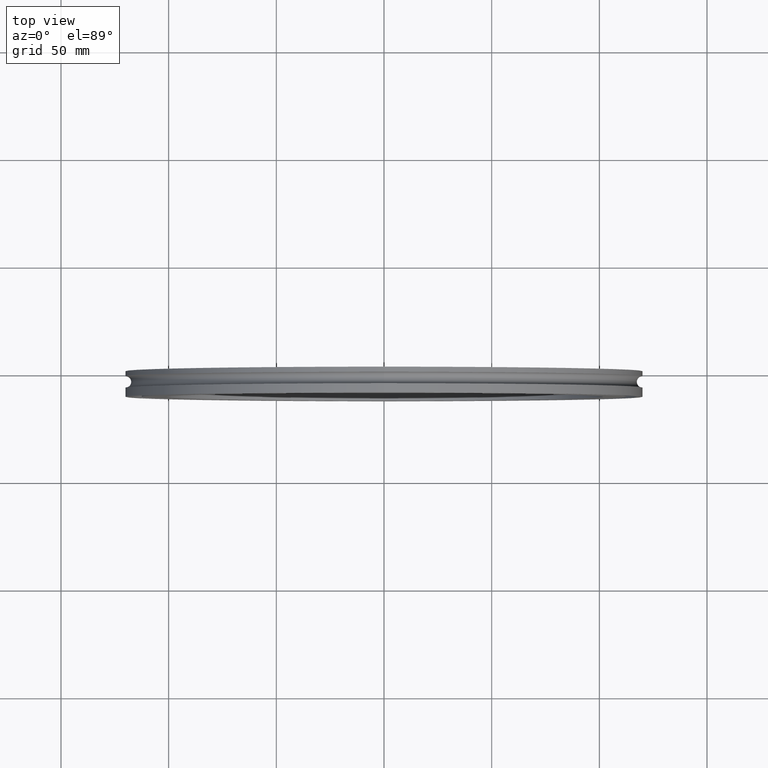
[diagram: clean part render]
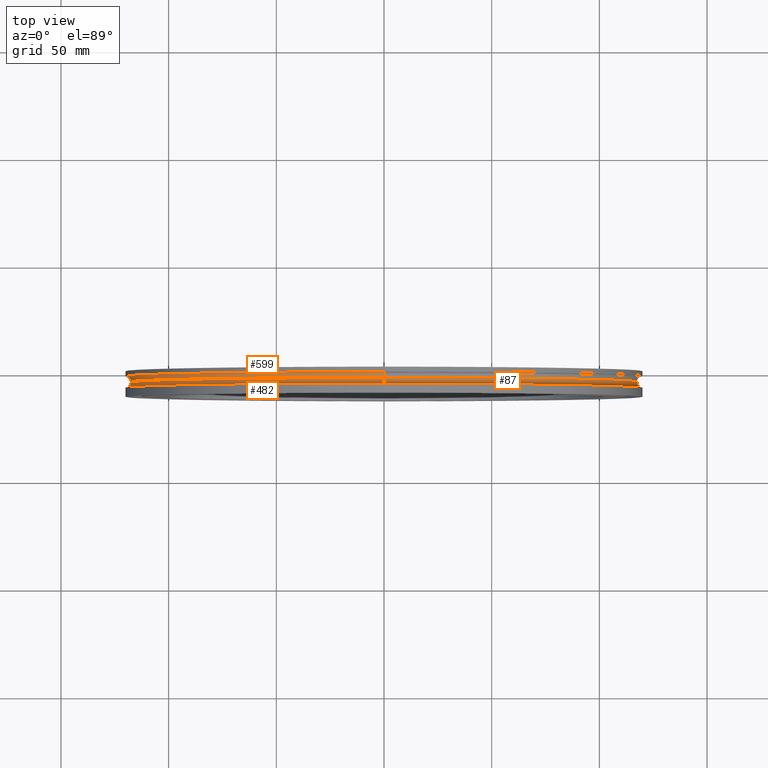
[diagram: same view with one multi-face feature highlighted, each face labeled with its STEP entity id]
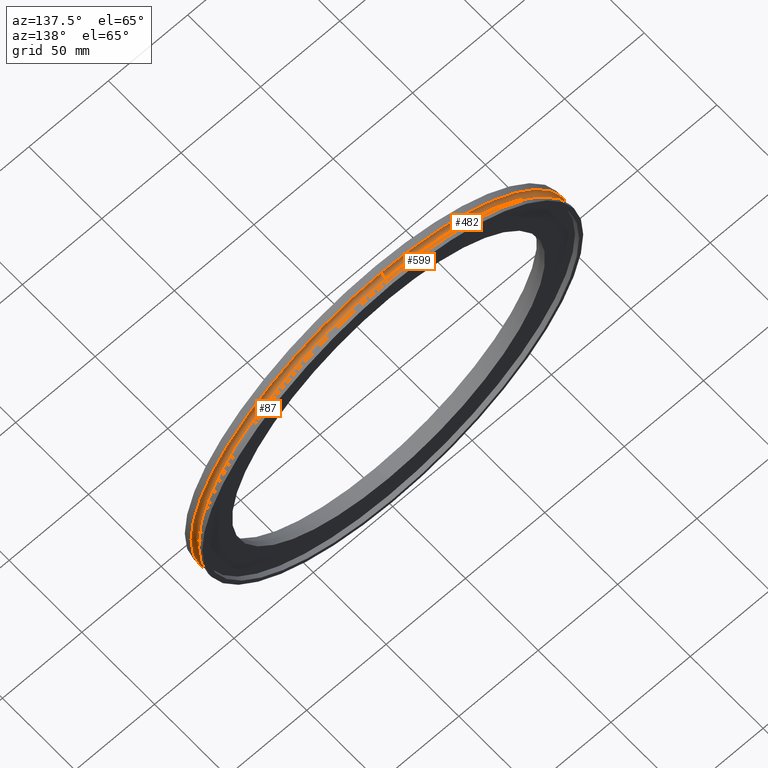
[diagram: same view with one multi-face feature highlighted, each face labeled with its STEP entity id]
A machine part, top view. The highlighted faces form ONE feature: a constant-radius fillet chain: 3 tangent blend faces with common blend radius 2.6162 mm. The faces share edges in the B-rep.
A second angle (auxiliary view) of the same feature is appended — it is thin or edge-on in the first view.
Their STEP definitions:
[1] entity #599 (Torus):
#8 = AXIS2_PLACEMENT_3D ( 'NONE', #625, #617, #677 ) ;
#53 = CIRCLE ( 'NONE', #461, 4.724999999999998757 ) ;
#57 = VERTEX_POINT ( 'NONE', #280 ) ;
#66 = EDGE_CURVE ( 'NONE', #531, #198, #204, .T. ) ;
#109 = EDGE_LOOP ( 'NONE', ( #526, #213, #584, #684 ) ) ;
#123 = DIRECTION ( 'NONE',  ( -1.000000000000000000, 0.000000000000000000, 0.000000000000000000 ) ) ;
#187 = EDGE_CURVE ( 'NONE', #531, #650, #53, .T. ) ;
#198 = VERTEX_POINT ( 'NONE', #258 ) ;
#204 = CIRCLE ( 'NONE', #296, 0.1029999999999999666 ) ;
#213 = ORIENTED_EDGE ( 'NONE', *, *, #558, .T. ) ;
#247 = CARTESIAN_POINT ( 'NONE',  ( 0.000000000000000000, -0.09400000000000001410, 4.724999999999999645 ) ) ;
#253 = CARTESIAN_POINT ( 'NONE',  ( 0.000000000000000000, -0.09400000000000001410, 0.000000000000000000 ) ) ;
#258 = CARTESIAN_POINT ( 'NONE',  ( 5.660317505659065576E-16, -0.1970000000000000084, -4.621999999999999886 ) ) ;
#280 = CARTESIAN_POINT ( 'NONE',  ( 0.000000000000000000, -0.1970000000000000084, 4.621999999999999886 ) ) ;
#282 = TOROIDAL_SURFACE ( 'NONE', #391, 4.724999999999999645, 0.1029999999999999943 ) ;
#296 = AXIS2_PLACEMENT_3D ( 'NONE', #610, #543, #442 ) ;
#334 = CARTESIAN_POINT ( 'NONE',  ( 5.786456125971243047E-16, -0.09400000000000001410, -4.724999999999999645 ) ) ;
#356 = DIRECTION ( 'NONE',  ( 0.000000000000000000, 0.000000000000000000, 1.000000000000000000 ) ) ;
#391 = AXIS2_PLACEMENT_3D ( 'NONE', #503, #396, #356 ) ;
#393 = DIRECTION ( 'NONE',  ( 0.000000000000000000, 0.000000000000000000, 1.000000000000000000 ) ) ;
#396 = DIRECTION ( 'NONE',  ( -0.000000000000000000, 1.000000000000000000, -0.000000000000000000 ) ) ;
#403 = DIRECTION ( 'NONE',  ( -0.000000000000000000, 1.000000000000000000, -0.000000000000000000 ) ) ;
#440 = CARTESIAN_POINT ( 'NONE',  ( 0.000000000000000000, -0.1970000000000000084, 4.724999999999999645 ) ) ;
#442 = DIRECTION ( 'NONE',  ( 1.224646799147350989E-16, 0.000000000000000000, -1.000000000000000000 ) ) ;
#452 = AXIS2_PLACEMENT_3D ( 'NONE', #440, #123, #393 ) ;
#455 = FACE_OUTER_BOUND ( 'NONE', #109, .T. ) ;
#461 = AXIS2_PLACEMENT_3D ( 'NONE', #253, #403, #516 ) ;
#464 = CIRCLE ( 'NONE', #452, 0.1029999999999999666 ) ;
#492 = EDGE_CURVE ( 'NONE', #650, #57, #464, .T. ) ;
#503 = CARTESIAN_POINT ( 'NONE',  ( 0.000000000000000000, -0.1970000000000000084, 0.000000000000000000 ) ) ;
#516 = DIRECTION ( 'NONE',  ( 0.000000000000000000, 0.000000000000000000, 1.000000000000000000 ) ) ;
#526 = ORIENTED_EDGE ( 'NONE', *, *, #66, .T. ) ;
#531 = VERTEX_POINT ( 'NONE', #334 ) ;
#543 = DIRECTION ( 'NONE',  ( 1.000000000000000000, 0.000000000000000000, 1.224646799147353207E-16 ) ) ;
#558 = EDGE_CURVE ( 'NONE', #198, #57, #615, .T. ) ;
#584 = ORIENTED_EDGE ( 'NONE', *, *, #492, .F. ) ;
#599 = ADVANCED_FACE ( 'NONE', ( #455 ), #282, .F. ) ;
#610 = CARTESIAN_POINT ( 'NONE',  ( 5.786456125971243047E-16, -0.1970000000000000084, -4.724999999999999645 ) ) ;
#615 = CIRCLE ( 'NONE', #8, 4.621999999999999886 ) ;
#617 = DIRECTION ( 'NONE',  ( -0.000000000000000000, 1.000000000000000000, -0.000000000000000000 ) ) ;
#625 = CARTESIAN_POINT ( 'NONE',  ( 0.000000000000000000, -0.1970000000000000084, 0.000000000000000000 ) ) ;
#650 = VERTEX_POINT ( 'NONE', #247 ) ;
#677 = DIRECTION ( 'NONE',  ( 0.000000000000000000, 0.000000000000000000, 1.000000000000000000 ) ) ;
#684 = ORIENTED_EDGE ( 'NONE', *, *, #187, .F. ) ;
[2] entity #482 (Torus):
#8 = AXIS2_PLACEMENT_3D ( 'NONE', #625, #617, #677 ) ;
#57 = VERTEX_POINT ( 'NONE', #280 ) ;
#78 = AXIS2_PLACEMENT_3D ( 'NONE', #406, #88, #144 ) ;
#88 = DIRECTION ( 'NONE',  ( -0.000000000000000000, 1.000000000000000000, -0.000000000000000000 ) ) ;
#91 = CARTESIAN_POINT ( 'NONE',  ( 5.786456125971244033E-16, -0.2999999999999999889, -4.725000000000000533 ) ) ;
#100 = CIRCLE ( 'NONE', #521, 0.1029999999999999666 ) ;
#108 = ORIENTED_EDGE ( 'NONE', *, *, #609, .T. ) ;
#144 = DIRECTION ( 'NONE',  ( 0.000000000000000000, 0.000000000000000000, 1.000000000000000000 ) ) ;
#156 = EDGE_LOOP ( 'NONE', ( #472, #469, #108, #539 ) ) ;
#164 = VERTEX_POINT ( 'NONE', #91 ) ;
#178 = DIRECTION ( 'NONE',  ( 1.224646799147350989E-16, 0.000000000000000000, -1.000000000000000000 ) ) ;
#185 = AXIS2_PLACEMENT_3D ( 'NONE', #449, #662, #389 ) ;
#198 = VERTEX_POINT ( 'NONE', #258 ) ;
#228 = CIRCLE ( 'NONE', #78, 4.724999999999999645 ) ;
#231 = FACE_OUTER_BOUND ( 'NONE', #156, .T. ) ;
#245 = DIRECTION ( 'NONE',  ( 1.000000000000000000, 0.000000000000000000, 1.224646799147353207E-16 ) ) ;
#258 = CARTESIAN_POINT ( 'NONE',  ( 5.660317505659065576E-16, -0.1970000000000000084, -4.621999999999999886 ) ) ;
#276 = VERTEX_POINT ( 'NONE', #682 ) ;
#280 = CARTESIAN_POINT ( 'NONE',  ( 0.000000000000000000, -0.1970000000000000084, 4.621999999999999886 ) ) ;
#303 = TOROIDAL_SURFACE ( 'NONE', #185, 4.724999999999999645, 0.1029999999999999943 ) ;
#311 = AXIS2_PLACEMENT_3D ( 'NONE', #538, #527, #379 ) ;
#366 = CIRCLE ( 'NONE', #311, 0.1029999999999999666 ) ;
#379 = DIRECTION ( 'NONE',  ( 0.000000000000000000, 0.000000000000000000, 1.000000000000000000 ) ) ;
#389 = DIRECTION ( 'NONE',  ( 0.000000000000000000, 0.000000000000000000, 1.000000000000000000 ) ) ;
#406 = CARTESIAN_POINT ( 'NONE',  ( 0.000000000000000000, -0.2999999999999999889, 0.000000000000000000 ) ) ;
#418 = EDGE_CURVE ( 'NONE', #57, #276, #366, .T. ) ;
#449 = CARTESIAN_POINT ( 'NONE',  ( 0.000000000000000000, -0.1970000000000000084, 0.000000000000000000 ) ) ;
#469 = ORIENTED_EDGE ( 'NONE', *, *, #545, .T. ) ;
#472 = ORIENTED_EDGE ( 'NONE', *, *, #558, .F. ) ;
#482 = ADVANCED_FACE ( 'NONE', ( #231 ), #303, .F. ) ;
#521 = AXIS2_PLACEMENT_3D ( 'NONE', #550, #245, #178 ) ;
#527 = DIRECTION ( 'NONE',  ( -1.000000000000000000, 0.000000000000000000, 0.000000000000000000 ) ) ;
#538 = CARTESIAN_POINT ( 'NONE',  ( 0.000000000000000000, -0.1970000000000000084, 4.724999999999999645 ) ) ;
#539 = ORIENTED_EDGE ( 'NONE', *, *, #418, .F. ) ;
#545 = EDGE_CURVE ( 'NONE', #198, #164, #100, .T. ) ;
#550 = CARTESIAN_POINT ( 'NONE',  ( 5.786456125971243047E-16, -0.1970000000000000084, -4.724999999999999645 ) ) ;
#558 = EDGE_CURVE ( 'NONE', #198, #57, #615, .T. ) ;
#609 = EDGE_CURVE ( 'NONE', #164, #276, #228, .T. ) ;
#615 = CIRCLE ( 'NONE', #8, 4.621999999999999886 ) ;
#617 = DIRECTION ( 'NONE',  ( -0.000000000000000000, 1.000000000000000000, -0.000000000000000000 ) ) ;
#625 = CARTESIAN_POINT ( 'NONE',  ( 0.000000000000000000, -0.1970000000000000084, 0.000000000000000000 ) ) ;
#662 = DIRECTION ( 'NONE',  ( -0.000000000000000000, 1.000000000000000000, -0.000000000000000000 ) ) ;
#677 = DIRECTION ( 'NONE',  ( 0.000000000000000000, 0.000000000000000000, 1.000000000000000000 ) ) ;
#682 = CARTESIAN_POINT ( 'NONE',  ( 0.000000000000000000, -0.2999999999999999889, 4.724999999999999645 ) ) ;
[3] entity #87 (Torus):
#14 = EDGE_CURVE ( 'NONE', #276, #164, #326, .T. ) ;
#57 = VERTEX_POINT ( 'NONE', #280 ) ;
#84 = AXIS2_PLACEMENT_3D ( 'NONE', #117, #330, #540 ) ;
#87 = ADVANCED_FACE ( 'NONE', ( #128 ), #284, .F. ) ;
#91 = CARTESIAN_POINT ( 'NONE',  ( 5.786456125971244033E-16, -0.2999999999999999889, -4.725000000000000533 ) ) ;
#100 = CIRCLE ( 'NONE', #521, 0.1029999999999999666 ) ;
#117 = CARTESIAN_POINT ( 'NONE',  ( 0.000000000000000000, -0.1970000000000000084, 0.000000000000000000 ) ) ;
#128 = FACE_OUTER_BOUND ( 'NONE', #195, .T. ) ;
#148 = CIRCLE ( 'NONE', #664, 4.621999999999999886 ) ;
#164 = VERTEX_POINT ( 'NONE', #91 ) ;
#178 = DIRECTION ( 'NONE',  ( 1.224646799147350989E-16, 0.000000000000000000, -1.000000000000000000 ) ) ;
#181 = CARTESIAN_POINT ( 'NONE',  ( 0.000000000000000000, -0.1970000000000000084, 0.000000000000000000 ) ) ;
#188 = DIRECTION ( 'NONE',  ( 0.000000000000000000, 0.000000000000000000, 1.000000000000000000 ) ) ;
#195 = EDGE_LOOP ( 'NONE', ( #648, #587, #425, #630 ) ) ;
#198 = VERTEX_POINT ( 'NONE', #258 ) ;
#245 = DIRECTION ( 'NONE',  ( 1.000000000000000000, 0.000000000000000000, 1.224646799147353207E-16 ) ) ;
#258 = CARTESIAN_POINT ( 'NONE',  ( 5.660317505659065576E-16, -0.1970000000000000084, -4.621999999999999886 ) ) ;
#276 = VERTEX_POINT ( 'NONE', #682 ) ;
#277 = CARTESIAN_POINT ( 'NONE',  ( 0.000000000000000000, -0.2999999999999999889, 0.000000000000000000 ) ) ;
#280 = CARTESIAN_POINT ( 'NONE',  ( 0.000000000000000000, -0.1970000000000000084, 4.621999999999999886 ) ) ;
#284 = TOROIDAL_SURFACE ( 'NONE', #84, 4.724999999999999645, 0.1029999999999999943 ) ;
#311 = AXIS2_PLACEMENT_3D ( 'NONE', #538, #527, #379 ) ;
#326 = CIRCLE ( 'NONE', #566, 4.724999999999999645 ) ;
#330 = DIRECTION ( 'NONE',  ( -0.000000000000000000, 1.000000000000000000, -0.000000000000000000 ) ) ;
#366 = CIRCLE ( 'NONE', #311, 0.1029999999999999666 ) ;
#379 = DIRECTION ( 'NONE',  ( 0.000000000000000000, 0.000000000000000000, 1.000000000000000000 ) ) ;
#418 = EDGE_CURVE ( 'NONE', #57, #276, #366, .T. ) ;
#425 = ORIENTED_EDGE ( 'NONE', *, *, #14, .T. ) ;
#444 = DIRECTION ( 'NONE',  ( -0.000000000000000000, 1.000000000000000000, -0.000000000000000000 ) ) ;
#511 = EDGE_CURVE ( 'NONE', #57, #198, #148, .T. ) ;
#521 = AXIS2_PLACEMENT_3D ( 'NONE', #550, #245, #178 ) ;
#527 = DIRECTION ( 'NONE',  ( -1.000000000000000000, 0.000000000000000000, 0.000000000000000000 ) ) ;
#538 = CARTESIAN_POINT ( 'NONE',  ( 0.000000000000000000, -0.1970000000000000084, 4.724999999999999645 ) ) ;
#540 = DIRECTION ( 'NONE',  ( 0.000000000000000000, 0.000000000000000000, 1.000000000000000000 ) ) ;
#545 = EDGE_CURVE ( 'NONE', #198, #164, #100, .T. ) ;
#550 = CARTESIAN_POINT ( 'NONE',  ( 5.786456125971243047E-16, -0.1970000000000000084, -4.724999999999999645 ) ) ;
#566 = AXIS2_PLACEMENT_3D ( 'NONE', #277, #594, #606 ) ;
#587 = ORIENTED_EDGE ( 'NONE', *, *, #418, .T. ) ;
#594 = DIRECTION ( 'NONE',  ( -0.000000000000000000, 1.000000000000000000, -0.000000000000000000 ) ) ;
#606 = DIRECTION ( 'NONE',  ( 0.000000000000000000, 0.000000000000000000, 1.000000000000000000 ) ) ;
#630 = ORIENTED_EDGE ( 'NONE', *, *, #545, .F. ) ;
#648 = ORIENTED_EDGE ( 'NONE', *, *, #511, .F. ) ;
#664 = AXIS2_PLACEMENT_3D ( 'NONE', #181, #444, #188 ) ;
#682 = CARTESIAN_POINT ( 'NONE',  ( 0.000000000000000000, -0.2999999999999999889, 4.724999999999999645 ) ) ;